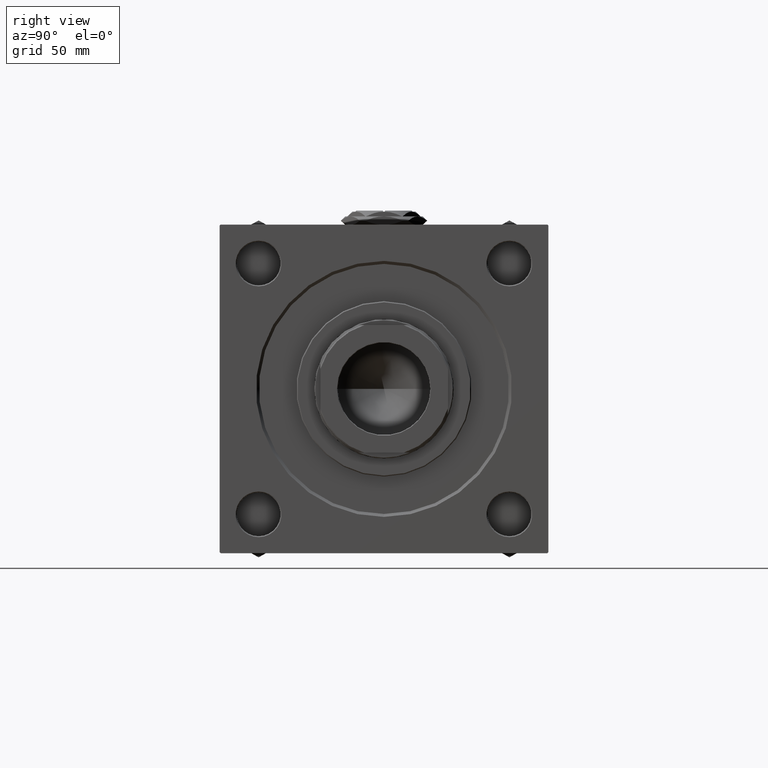
[diagram: clean part render]
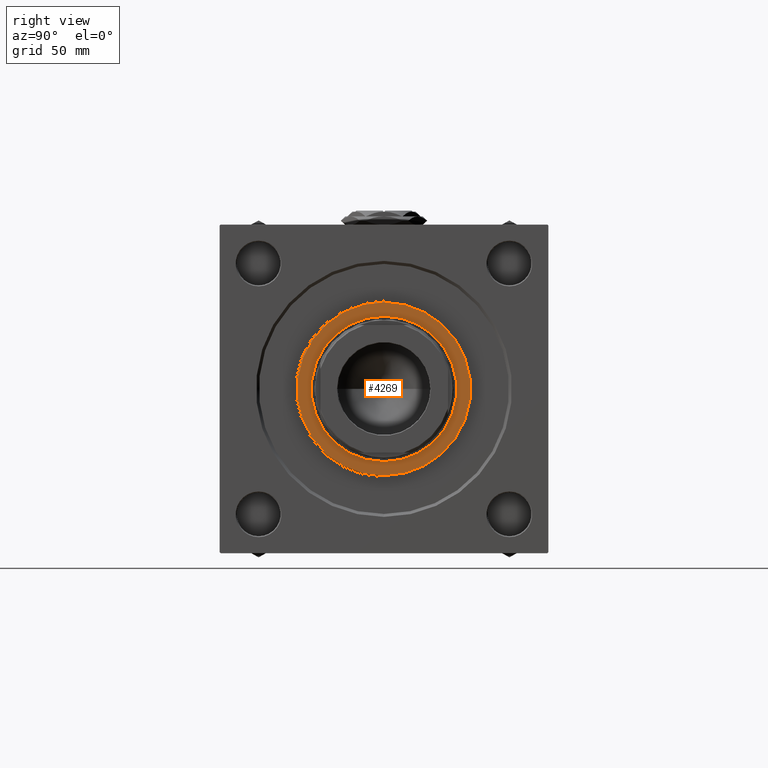
[diagram: same view with one face highlighted and labeled with its STEP entity id]
A machine part, right view. The second image highlights one B-rep face of the part: STEP entity #4269.
In plain terms, the highlighted planar face has unit normal (1, 0, 0).
Its self-contained STEP definition (entity closure, byte-faithful):
#965 = DIRECTION ( 'NONE',  ( 1.000000000000000000, 0.000000000000000000, 0.000000000000000000 ) ) ;
#1008 = CARTESIAN_POINT ( 'NONE',  ( 36.50000000000000000, 0.000000000000000000, 38.69999999999999574 ) ) ;
#3679 = CIRCLE ( 'NONE', #45272, 43.50000000000001421 ) ;
#4269 = ADVANCED_FACE ( 'NONE', ( #14633, #30855 ), #10644, .T. ) ;
#5002 = ORIENTED_EDGE ( 'NONE', *, *, #6900, .F. ) ;
#5055 = DIRECTION ( 'NONE',  ( 0.000000000000000000, 0.000000000000000000, 1.000000000000000000 ) ) ;
#5536 = CARTESIAN_POINT ( 'NONE',  ( 43.50000000000001421, 5.357829746269670620E-15, 38.69999999999999574 ) ) ;
#5917 = AXIS2_PLACEMENT_3D ( 'NONE', #13474, #48848, #965 ) ;
#6647 = DIRECTION ( 'NONE',  ( 0.000000000000000000, 0.000000000000000000, 1.000000000000000000 ) ) ;
#6681 = CARTESIAN_POINT ( 'NONE',  ( 0.000000000000000000, 0.000000000000000000, 38.69999999999999574 ) ) ;
#6754 = CIRCLE ( 'NONE', #5917, 36.50000000000000000 ) ;
#6900 = EDGE_CURVE ( 'NONE', #39566, #34021, #6754, .T. ) ;
#9881 = DIRECTION ( 'NONE',  ( 0.000000000000000000, 0.000000000000000000, 1.000000000000000000 ) ) ;
#10644 = PLANE ( 'NONE',  #35650 ) ;
#10982 = EDGE_LOOP ( 'NONE', ( #13732, #19415 ) ) ;
#12551 = CARTESIAN_POINT ( 'NONE',  ( 0.000000000000000000, 0.000000000000000000, 38.69999999999999574 ) ) ;
#13474 = CARTESIAN_POINT ( 'NONE',  ( 0.000000000000000000, 0.000000000000000000, 38.69999999999999574 ) ) ;
#13732 = ORIENTED_EDGE ( 'NONE', *, *, #47741, .T. ) ;
#14207 = VERTEX_POINT ( 'NONE', #41251 ) ;
#14633 = FACE_BOUND ( 'NONE', #43284, .T. ) ;
#14729 = AXIS2_PLACEMENT_3D ( 'NONE', #12551, #17060, #40740 ) ;
#14844 = CIRCLE ( 'NONE', #43727, 36.50000000000000000 ) ;
#15132 = EDGE_CURVE ( 'NONE', #32695, #14207, #37653, .T. ) ;
#16249 = CARTESIAN_POINT ( 'NONE',  ( 0.000000000000000000, 0.000000000000000000, 38.69999999999999574 ) ) ;
#17060 = DIRECTION ( 'NONE',  ( 0.000000000000000000, 0.000000000000000000, 1.000000000000000000 ) ) ;
#18410 = DIRECTION ( 'NONE',  ( 1.000000000000000000, 0.000000000000000000, 0.000000000000000000 ) ) ;
#19415 = ORIENTED_EDGE ( 'NONE', *, *, #15132, .T. ) ;
#22873 = DIRECTION ( 'NONE',  ( 1.000000000000000000, 0.000000000000000000, -0.000000000000000000 ) ) ;
#30855 = FACE_OUTER_BOUND ( 'NONE', #10982, .T. ) ;
#32695 = VERTEX_POINT ( 'NONE', #5536 ) ;
#34021 = VERTEX_POINT ( 'NONE', #49539 ) ;
#35650 = AXIS2_PLACEMENT_3D ( 'NONE', #43086, #6647, #22873 ) ;
#37653 = CIRCLE ( 'NONE', #14729, 43.50000000000001421 ) ;
#39566 = VERTEX_POINT ( 'NONE', #1008 ) ;
#40740 = DIRECTION ( 'NONE',  ( 1.000000000000000000, 0.000000000000000000, 0.000000000000000000 ) ) ;
#41231 = DIRECTION ( 'NONE',  ( 1.000000000000000000, 0.000000000000000000, 0.000000000000000000 ) ) ;
#41251 = CARTESIAN_POINT ( 'NONE',  ( -43.50000000000001421, 0.000000000000000000, 38.69999999999999574 ) ) ;
#43086 = CARTESIAN_POINT ( 'NONE',  ( 0.000000000000000000, 0.000000000000000000, 38.69999999999999574 ) ) ;
#43284 = EDGE_LOOP ( 'NONE', ( #5002, #45109 ) ) ;
#43727 = AXIS2_PLACEMENT_3D ( 'NONE', #6681, #9881, #18410 ) ;
#45109 = ORIENTED_EDGE ( 'NONE', *, *, #50902, .F. ) ;
#45272 = AXIS2_PLACEMENT_3D ( 'NONE', #16249, #5055, #41231 ) ;
#47741 = EDGE_CURVE ( 'NONE', #14207, #32695, #3679, .T. ) ;
#48848 = DIRECTION ( 'NONE',  ( 0.000000000000000000, 0.000000000000000000, 1.000000000000000000 ) ) ;
#49539 = CARTESIAN_POINT ( 'NONE',  ( -36.50000000000000000, 4.469960816887838430E-15, 38.69999999999999574 ) ) ;
#50902 = EDGE_CURVE ( 'NONE', #34021, #39566, #14844, .T. ) ;